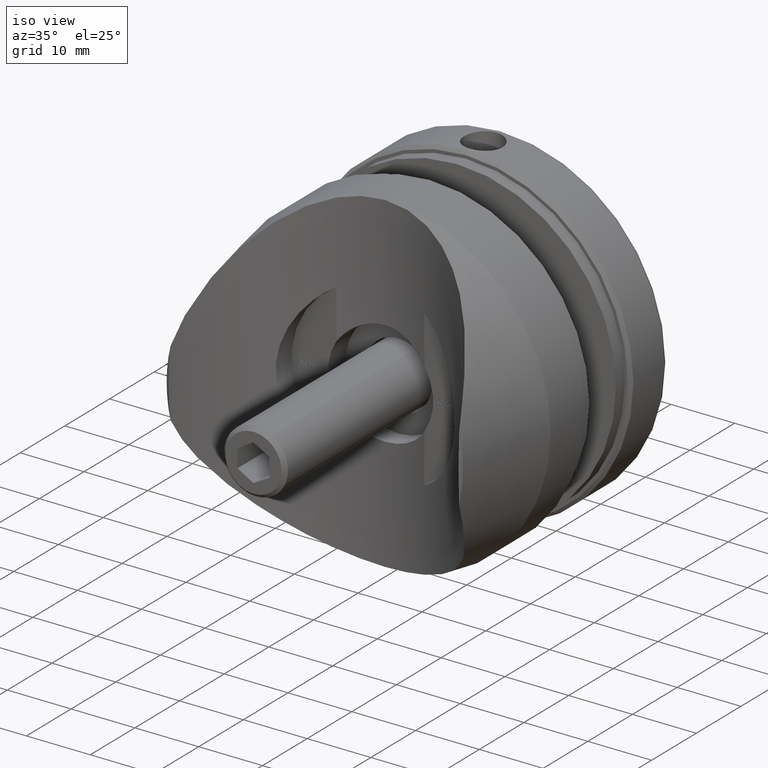
[diagram: clean part render]
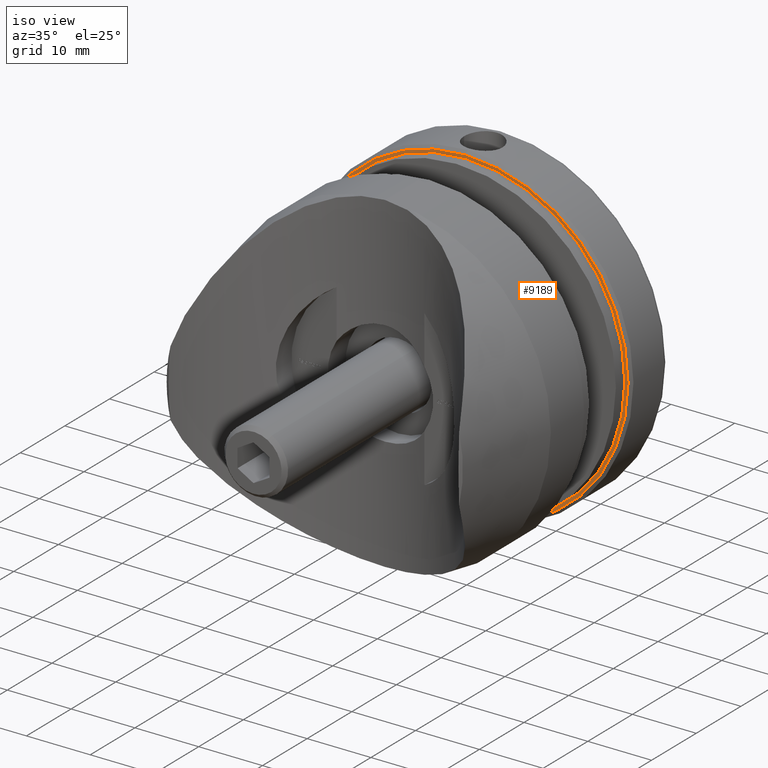
[diagram: same view with one face highlighted and labeled with its STEP entity id]
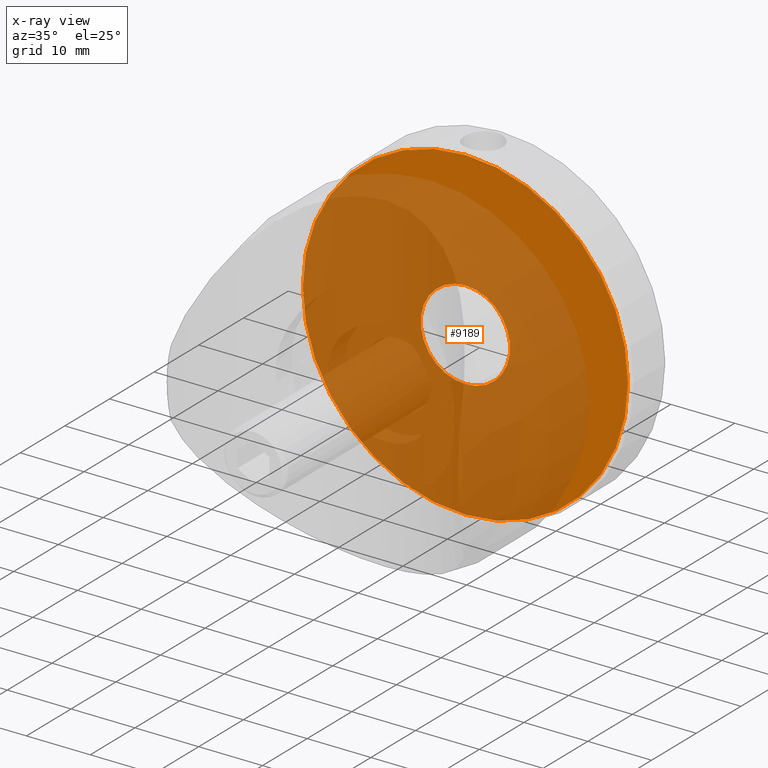
[diagram: x-ray of the same camera — body ghosted, the highlighted face saturated]
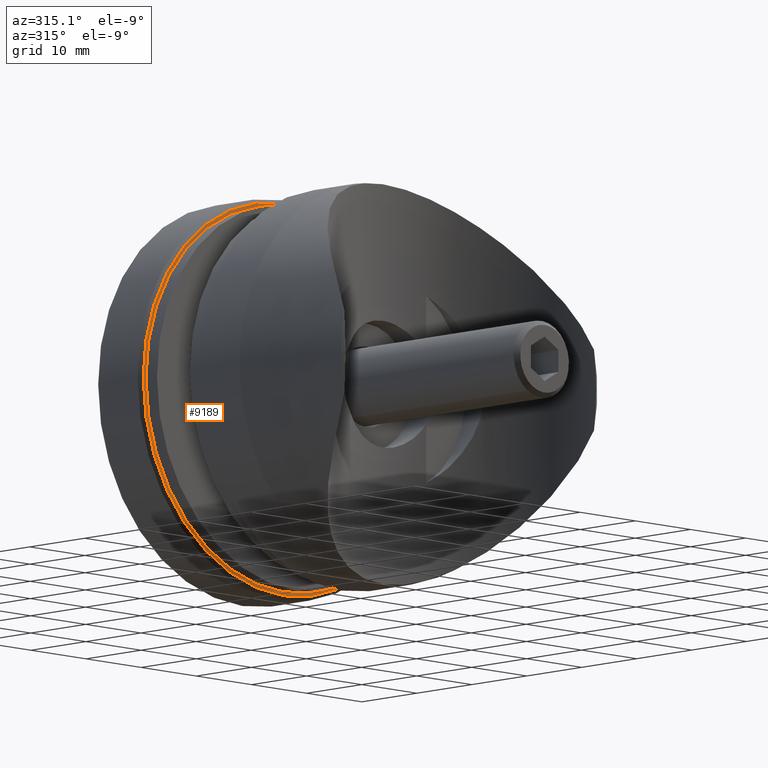
[diagram: same view with one face highlighted and labeled with its STEP entity id]
A machine part, iso view. The second image highlights one B-rep face of the part: STEP entity #9189.
The next image is the same camera in x-ray: the body ghosted, the highlighted face saturated — about 79% of this face is hidden behind the body in this view.
A second angle (auxiliary view) of the same face is appended — the face is thin or edge-on in the first view.
In plain terms, the highlighted planar face has unit normal (0, -1, 0).
Its self-contained STEP definition (entity closure, byte-faithful):
#756 = DIRECTION ( 'NONE',  ( -0.000000000000000000, -1.000000000000000000, -0.000000000000000000 ) ) ;
#1172 = ORIENTED_EDGE ( 'NONE', *, *, #12867, .T. ) ;
#1858 = AXIS2_PLACEMENT_3D ( 'NONE', #15660, #756, #6710 ) ;
#2082 = FACE_BOUND ( 'NONE', #16836, .T. ) ;
#2731 = CARTESIAN_POINT ( 'NONE',  ( 0.000000000000000000, 7.999999999999998224, 0.000000000000000000 ) ) ;
#3675 = ORIENTED_EDGE ( 'NONE', *, *, #3786, .F. ) ;
#3786 = EDGE_CURVE ( 'NONE', #12538, #17810, #17193, .T. ) ;
#3944 = CARTESIAN_POINT ( 'NONE',  ( 8.572527594031472204E-16, 7.999999999999998224, 6.999999999999999112 ) ) ;
#4331 = EDGE_CURVE ( 'NONE', #5297, #17091, #13915, .T. ) ;
#4621 = DIRECTION ( 'NONE',  ( 0.000000000000000000, 0.000000000000000000, -1.000000000000000000 ) ) ;
#5297 = VERTEX_POINT ( 'NONE', #8995 ) ;
#5587 = AXIS2_PLACEMENT_3D ( 'NONE', #2731, #11451, #15959 ) ;
#6008 = CARTESIAN_POINT ( 'NONE',  ( 26.00000000000000355, 8.000000000000000000, 0.000000000000000000 ) ) ;
#6020 = CARTESIAN_POINT ( 'NONE',  ( 3.153465507804433615E-15, 8.000000000000000000, -25.49999999999999289 ) ) ;
#6157 = EDGE_LOOP ( 'NONE', ( #14030, #1172 ) ) ;
#6710 = DIRECTION ( 'NONE',  ( 0.000000000000000000, 0.000000000000000000, -1.000000000000000000 ) ) ;
#6734 = CIRCLE ( 'NONE', #7857, 6.999999999999999112 ) ;
#6830 = CARTESIAN_POINT ( 'NONE',  ( 0.000000000000000000, 7.999999999999998224, 0.000000000000000000 ) ) ;
#7857 = AXIS2_PLACEMENT_3D ( 'NONE', #6830, #16879, #8009 ) ;
#8009 = DIRECTION ( 'NONE',  ( 0.000000000000000000, 0.000000000000000000, -1.000000000000000000 ) ) ;
#8063 = CARTESIAN_POINT ( 'NONE',  ( 0.000000000000000000, 7.999999999999998224, -6.999999999999999112 ) ) ;
#8865 = AXIS2_PLACEMENT_3D ( 'NONE', #6008, #10387, #4621 ) ;
#8995 = CARTESIAN_POINT ( 'NONE',  ( 0.000000000000000000, 8.000000000000000000, 25.49999999999999289 ) ) ;
#9105 = DIRECTION ( 'NONE',  ( 0.000000000000000000, 0.000000000000000000, -1.000000000000000000 ) ) ;
#9189 = ADVANCED_FACE ( 'NONE', ( #17858, #2082 ), #13283, .T. ) ;
#10088 = EDGE_CURVE ( 'NONE', #17810, #12538, #6734, .T. ) ;
#10387 = DIRECTION ( 'NONE',  ( 0.000000000000000000, -1.000000000000000000, -0.000000000000000000 ) ) ;
#11451 = DIRECTION ( 'NONE',  ( -0.000000000000000000, -1.000000000000000000, -0.000000000000000000 ) ) ;
#12185 = CARTESIAN_POINT ( 'NONE',  ( 0.000000000000000000, 8.000000000000000000, 0.000000000000000000 ) ) ;
#12538 = VERTEX_POINT ( 'NONE', #8063 ) ;
#12867 = EDGE_CURVE ( 'NONE', #17091, #5297, #12868, .T. ) ;
#12868 = CIRCLE ( 'NONE', #17574, 25.49999999999999289 ) ;
#13283 = PLANE ( 'NONE',  #8865 ) ;
#13915 = CIRCLE ( 'NONE', #1858, 25.49999999999999289 ) ;
#14030 = ORIENTED_EDGE ( 'NONE', *, *, #4331, .T. ) ;
#14971 = DIRECTION ( 'NONE',  ( -0.000000000000000000, -1.000000000000000000, -0.000000000000000000 ) ) ;
#15412 = ORIENTED_EDGE ( 'NONE', *, *, #10088, .F. ) ;
#15660 = CARTESIAN_POINT ( 'NONE',  ( 0.000000000000000000, 8.000000000000000000, 0.000000000000000000 ) ) ;
#15959 = DIRECTION ( 'NONE',  ( 0.000000000000000000, 0.000000000000000000, -1.000000000000000000 ) ) ;
#16836 = EDGE_LOOP ( 'NONE', ( #3675, #15412 ) ) ;
#16879 = DIRECTION ( 'NONE',  ( -0.000000000000000000, -1.000000000000000000, -0.000000000000000000 ) ) ;
#17091 = VERTEX_POINT ( 'NONE', #6020 ) ;
#17193 = CIRCLE ( 'NONE', #5587, 6.999999999999999112 ) ;
#17574 = AXIS2_PLACEMENT_3D ( 'NONE', #12185, #14971, #9105 ) ;
#17810 = VERTEX_POINT ( 'NONE', #3944 ) ;
#17858 = FACE_OUTER_BOUND ( 'NONE', #6157, .T. ) ;